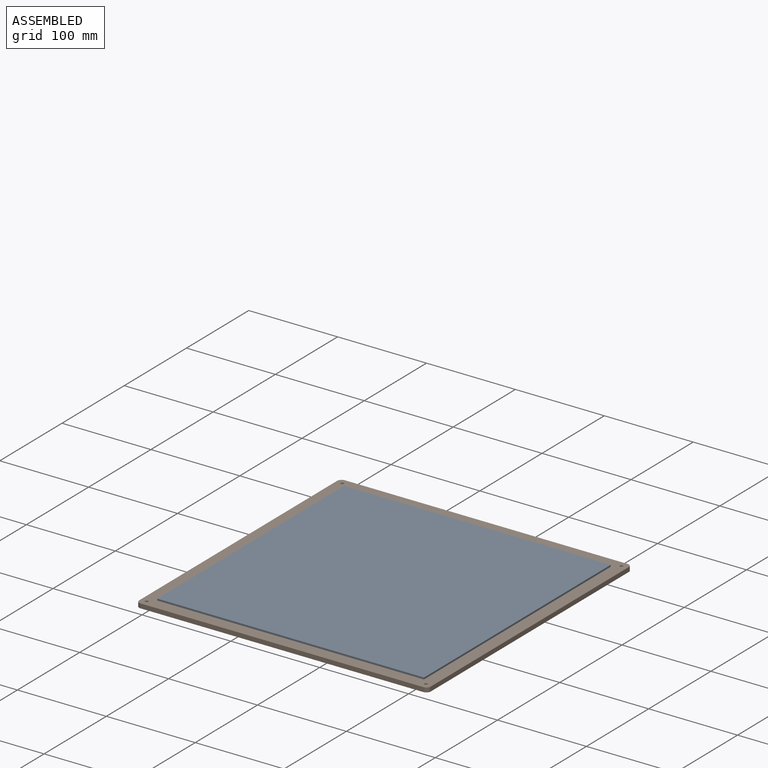
[diagram: assembled view]
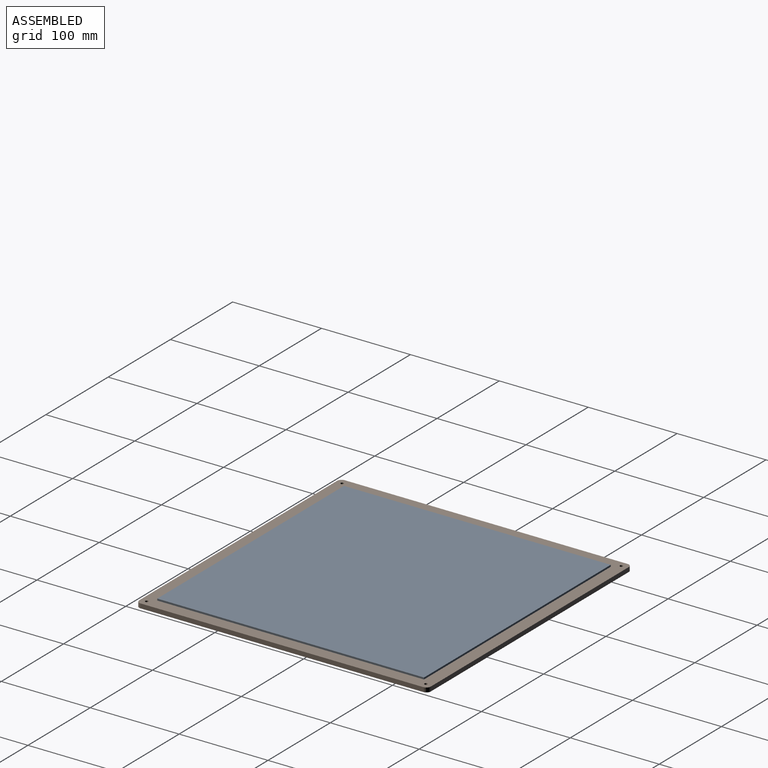
[diagram: assembled view, second angle]
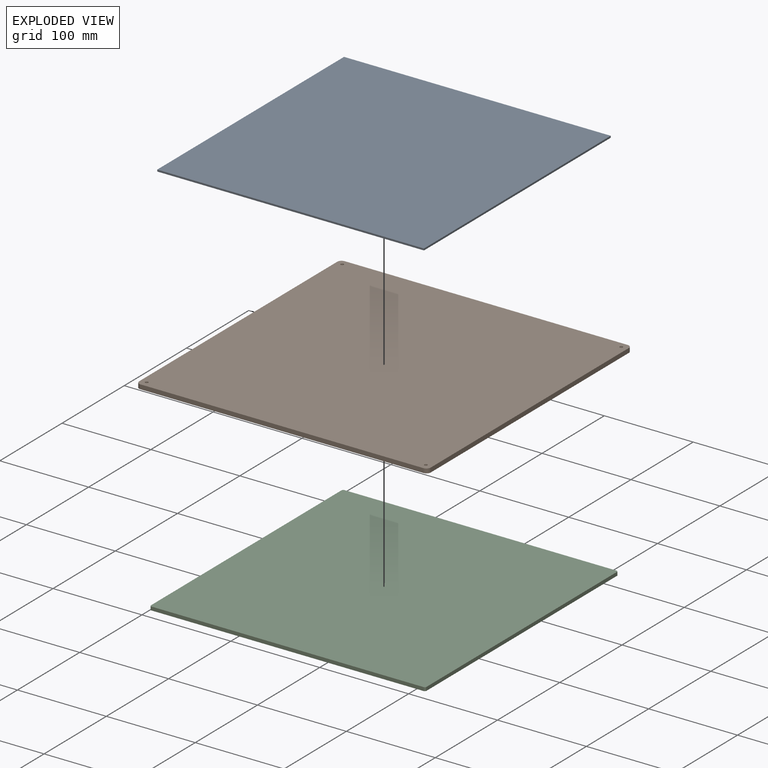
[diagram: exploded view]
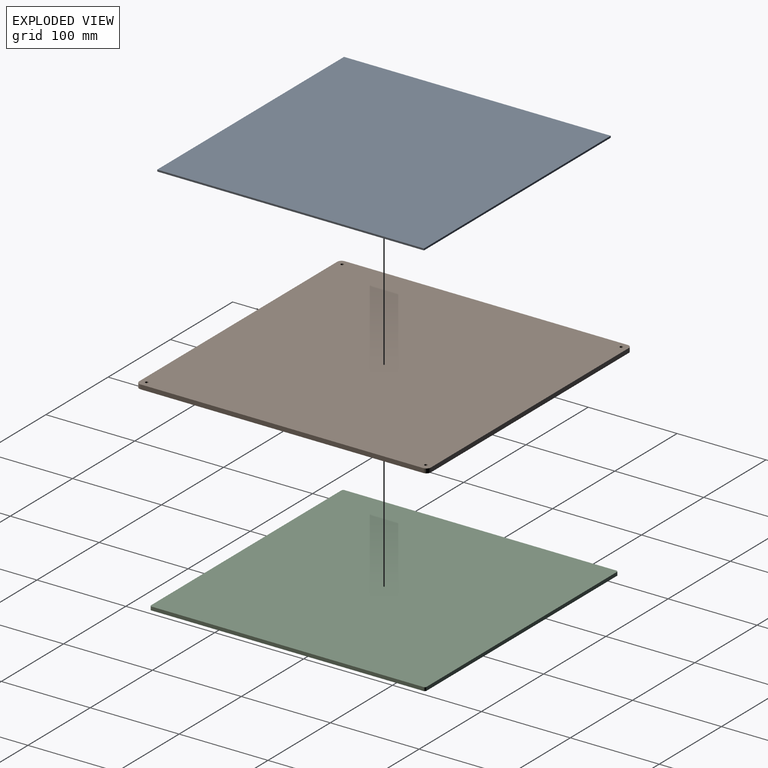
[diagram: exploded view, second angle]
ASSEMBLY  parts=3 mates=2
PART A: 6 faces, bbox 300x300x2 mm
  f0: plane 300x2mm, normal (0,1,0), area 600mm2, adj f1,f3,f4,f5
  f1: plane 300x2mm, normal (-1,0,0), area 600mm2, adj f0,f2,f4,f5
  f2: plane 300x2mm, normal (0,-1,0), area 600mm2, adj f1,f3,f4,f5
  f3: plane 300x2mm, normal (1,0,0), area 600mm2, adj f0,f2,f4,f5
  f4: plane 300x300mm, normal (0,0,1), area 90000mm2, adj f0,f1,f2,f3
  f5: plane 300x300mm, normal (0,0,-1), area 90000mm2, adj f0,f1,f2,f3
PART B: 18 faces, bbox 328x328x5 mm
  f0: plane 318x5mm, normal (0,1,0), area 1590mm2, adj f4,f5,f14,f17
  f1: plane 318x5mm, normal (-1,0,0), area 1590mm2, adj f4,f5,f14,f15
  f2: plane 318x5mm, normal (0,-1,0), area 1590mm2, adj f4,f5,f15,f16
  f3: plane 318x5mm, normal (1,0,0), area 1590mm2, adj f4,f5,f16,f17
  f4: plane 328x328mm, normal (0,0,1), area 107526.2mm2, adj f0,f1,f2,f3,f6,f8,f10,f12
  f5: plane 328x328mm, normal (0,0,-1), area 107420.7mm2, adj f0,f1,f2,f3,f7,f9,f11,f13
  f6: cylinder r=1.7mm len=3.4mm, axis (0,0,-1), area 35.7mm2, adj f4,f7
  f7: cone r=1.7mm half-angle=45deg, axis (0,0,-1), area 37.3mm2, adj f5,f6
  f8: cylinder r=1.7mm len=3.4mm, axis (0,0,-1), area 35.7mm2, adj f4,f9
  f9: cone r=1.7mm half-angle=45deg, axis (0,0,-1), area 37.3mm2, adj f5,f8
  f10: cylinder r=1.7mm len=3.4mm, axis (0,0,-1), area 35.7mm2, adj f4,f11
  f11: cone r=1.7mm half-angle=45deg, axis (0,0,-1), area 37.3mm2, adj f5,f10
  f12: cylinder r=1.7mm len=3.4mm, axis (0,0,-1), area 35.7mm2, adj f4,f13
  f13: cone r=1.7mm half-angle=45deg, axis (0,0,-1), area 37.3mm2, adj f5,f12
  f14: cylinder r=5mm len=5mm, axis (0,0,1), area 39.3mm2, adj f0,f1,f4,f5
  f15: cylinder r=5mm len=5mm, axis (0,0,-1), area 39.3mm2, adj f1,f2,f4,f5
  f16: cylinder r=5mm len=5mm, axis (0,0,1), area 39.3mm2, adj f2,f3,f4,f5
  f17: cylinder r=5mm len=5mm, axis (0,0,-1), area 39.3mm2, adj f0,f3,f4,f5
PART C: 10 faces, bbox 310x310x4 mm
  f0: plane 306x4mm, normal (0,1,0), area 1224mm2, adj f4,f5,f6,f9
  f1: plane 306x4mm, normal (-1,0,0), area 1224mm2, adj f4,f5,f6,f7
  f2: plane 306x4mm, normal (0,-1,0), area 1224mm2, adj f4,f5,f7,f8
  f3: plane 306x4mm, normal (1,0,0), area 1224mm2, adj f4,f5,f8,f9
  f4: plane 310x310mm, normal (0,0,1), area 96096.6mm2, adj f0,f1,f2,f3,f6,f7,f8,f9
  f5: plane 310x310mm, normal (0,0,-1), area 96096.6mm2, adj f0,f1,f2,f3,f6,f7,f8,f9
  f6: cylinder r=2mm len=4mm, axis (0,0,1), area 12.6mm2, adj f0,f1,f4,f5
  f7: cylinder r=2mm len=4mm, axis (0,0,-1), area 12.6mm2, adj f1,f2,f4,f5
  f8: cylinder r=2mm len=4mm, axis (0,0,1), area 12.6mm2, adj f2,f3,f4,f5
  f9: cylinder r=2mm len=4mm, axis (0,0,-1), area 12.6mm2, adj f0,f3,f4,f5
PLACE A rot(axis=(1,0,0),180deg) t=(-8.06,14.82,57.04)mm
PLACE B t=(-8.06,14.82,50.04)mm
PLACE C t=(-8.06,14.82,46.04)mm
MATE fastened A.f4 <-> B.f4  axis (0,0,-1) through (-8.06,14.82,55.04)mm
MATE fastened C.f4 <-> B.f5  axis (0,0,1) through (-8.06,14.82,50.04)mm
